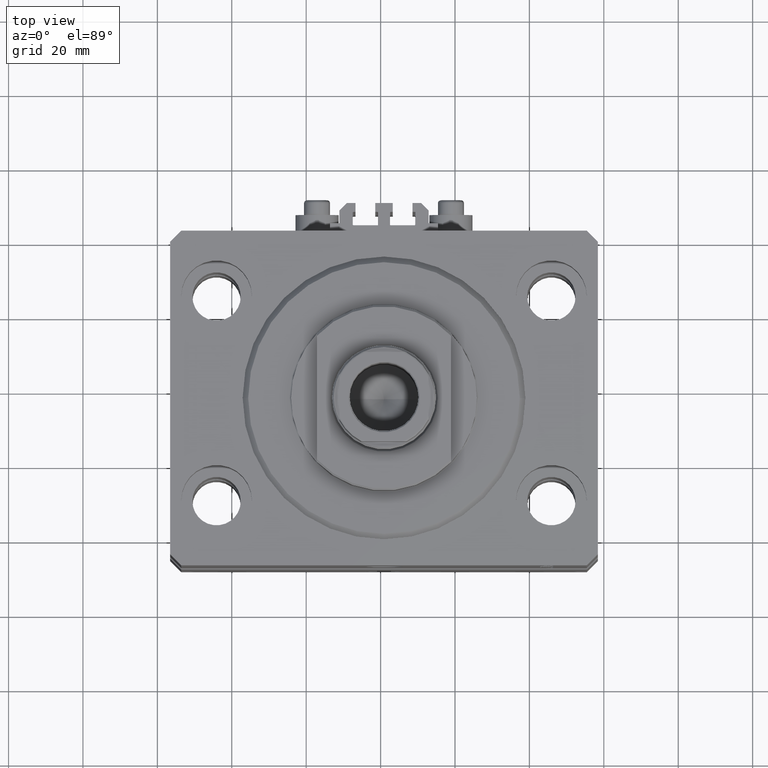
[diagram: clean part render]
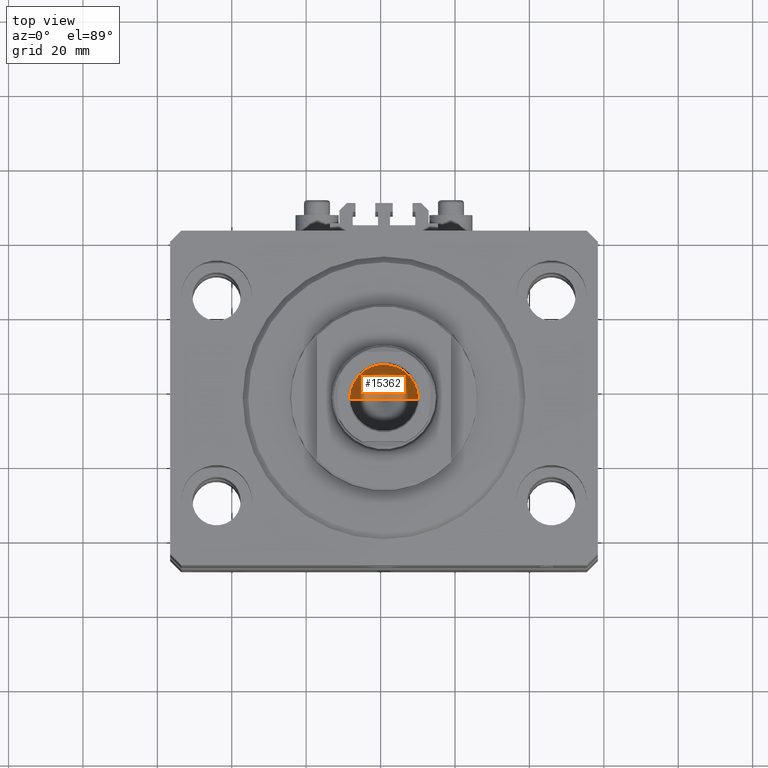
[diagram: same view with one face highlighted and labeled with its STEP entity id]
A machine part, top view. The second image highlights one B-rep face of the part: STEP entity #15362.
In plain terms, the highlighted conical surface has half-angle 59 deg.
Its self-contained STEP definition (entity closure, byte-faithful):
#60 = VERTEX_POINT ( 'NONE', #29427 ) ;
#97 = VERTEX_POINT ( 'NONE', #46651 ) ;
#2025 = DIRECTION ( 'NONE',  ( 1.000000000000000000, 0.000000000000000000, 0.000000000000000000 ) ) ;
#2500 = ORIENTED_EDGE ( 'NONE', *, *, #7232, .F. ) ;
#3248 = ORIENTED_EDGE ( 'NONE', *, *, #14173, .T. ) ;
#7232 = EDGE_CURVE ( 'NONE', #97, #60, #18350, .T. ) ;
#10612 = VECTOR ( 'NONE', #48157, 1000.000000000000000 ) ;
#12804 = CONICAL_SURFACE ( 'NONE', #42702, 9.249999999999994671, 1.029744258676653423 ) ;
#14173 = EDGE_CURVE ( 'NONE', #21740, #60, #22992, .T. ) ;
#15362 = ADVANCED_FACE ( 'NONE', ( #17006 ), #12804, .F. ) ;
#17006 = FACE_OUTER_BOUND ( 'NONE', #30763, .T. ) ;
#18350 = LINE ( 'NONE', #37568, #22854 ) ;
#19056 = AXIS2_PLACEMENT_3D ( 'NONE', #19723, #23656, #2025 ) ;
#19723 = CARTESIAN_POINT ( 'NONE',  ( 0.000000000000000000, 0.000000000000000000, 72.09999999999999432 ) ) ;
#19939 = CARTESIAN_POINT ( 'NONE',  ( 9.249999999999994671, 0.000000000000000000, 72.09999999999999432 ) ) ;
#21740 = VERTEX_POINT ( 'NONE', #19939 ) ;
#22509 = LINE ( 'NONE', #44466, #10612 ) ;
#22854 = VECTOR ( 'NONE', #33383, 1000.000000000000000 ) ;
#22992 = CIRCLE ( 'NONE', #19056, 9.249999999999994671 ) ;
#23656 = DIRECTION ( 'NONE',  ( -0.000000000000000000, -0.000000000000000000, 1.000000000000000000 ) ) ;
#24631 = CARTESIAN_POINT ( 'NONE',  ( 0.000000000000000000, 0.000000000000000000, 72.09999999999999432 ) ) ;
#27648 = EDGE_CURVE ( 'NONE', #97, #21740, #22509, .T. ) ;
#29427 = CARTESIAN_POINT ( 'NONE',  ( -9.249999999999994671, 1.132798289211300909E-15, 72.09999999999999432 ) ) ;
#30763 = EDGE_LOOP ( 'NONE', ( #2500, #37746, #3248 ) ) ;
#33383 = DIRECTION ( 'NONE',  ( -0.8571673007021117785, 1.049727191138617956E-16, 0.5150380749100550437 ) ) ;
#37568 = CARTESIAN_POINT ( 'NONE',  ( -9.249999999999994671, 1.132798289211300909E-15, 72.09999999999999432 ) ) ;
#37746 = ORIENTED_EDGE ( 'NONE', *, *, #27648, .T. ) ;
#39681 = DIRECTION ( 'NONE',  ( 1.000000000000000000, 0.000000000000000000, 0.000000000000000000 ) ) ;
#39928 = DIRECTION ( 'NONE',  ( -0.000000000000000000, -0.000000000000000000, 1.000000000000000000 ) ) ;
#42702 = AXIS2_PLACEMENT_3D ( 'NONE', #24631, #39928, #39681 ) ;
#44466 = CARTESIAN_POINT ( 'NONE',  ( 9.249999999999994671, 0.000000000000000000, 72.09999999999999432 ) ) ;
#46651 = CARTESIAN_POINT ( 'NONE',  ( -1.046994375366439223E-14, 0.000000000000000000, 66.54203927399505858 ) ) ;
#48157 = DIRECTION ( 'NONE',  ( 0.8571673007021117785, 0.000000000000000000, 0.5150380749100550437 ) ) ;